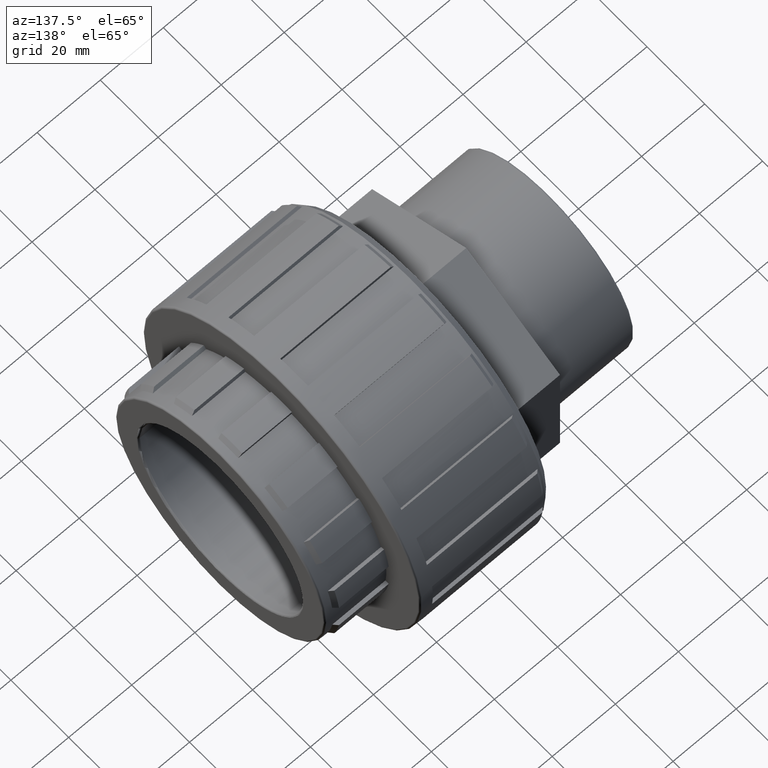
[diagram: clean part render]
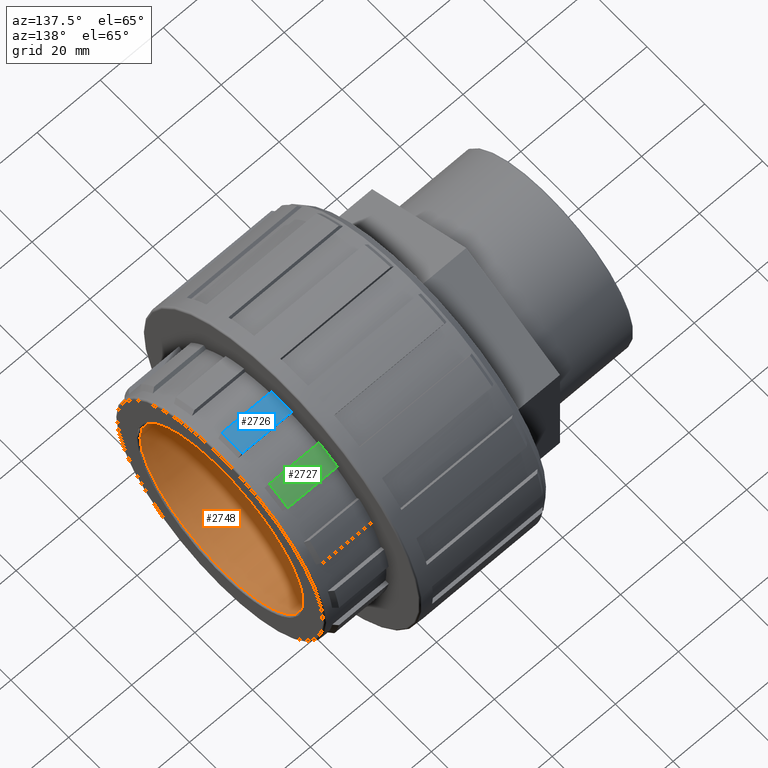
[diagram: same view with three faces highlighted in distinct colors, each labeled with its STEP entity id]
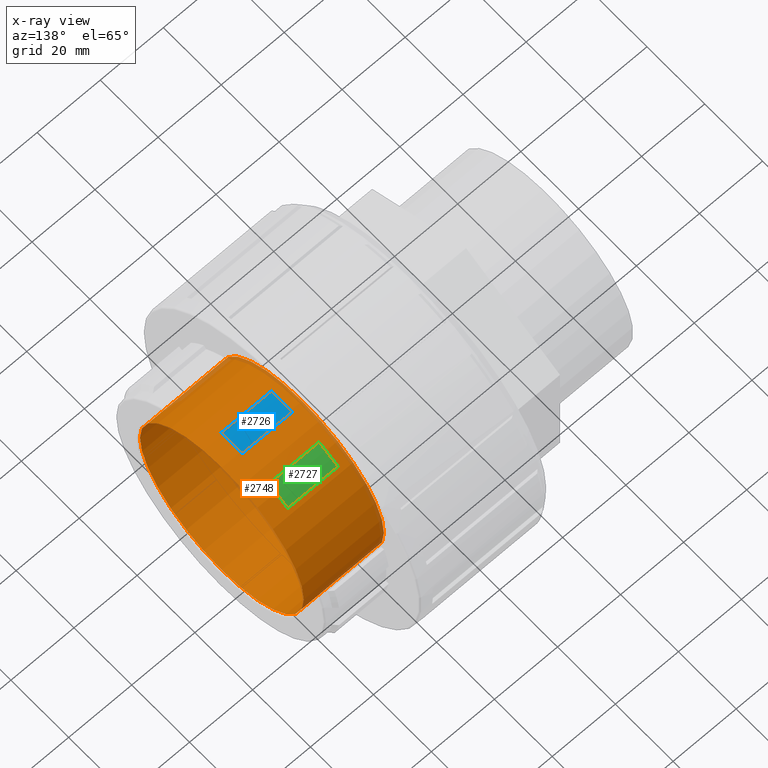
[diagram: x-ray of the same camera — body ghosted, the three highlighted faces saturated]
A machine part, auxiliary view with three faces highlighted in distinct colors.
The next image is the same camera in x-ray (body ghosted, the three faces saturated) — at least one of them is partly hidden behind the body in this view.
Their STEP definitions:

[orange] entity #2748 — the highlighted cylindrical surface (bore or boss wall) has radius 28.328 mm, axis along (-1, -0, 0).
#56=FACE_BOUND('',#516,.T.);
#88=CYLINDRICAL_SURFACE('',#3022,28.328);
#216=CIRCLE('',#3018,28.328);
#219=CIRCLE('',#3023,28.328);
#362=FACE_OUTER_BOUND('',#515,.T.);
#515=EDGE_LOOP('',(#2356));
#516=EDGE_LOOP('',(#2357));
#1321=VERTEX_POINT('',#4648);
#1324=VERTEX_POINT('',#4656);
#1715=EDGE_CURVE('',#1321,#1321,#216,.T.);
#1718=EDGE_CURVE('',#1324,#1324,#219,.T.);
#2356=ORIENTED_EDGE('',*,*,#1718,.T.);
#2357=ORIENTED_EDGE('',*,*,#1715,.F.);
#2748=ADVANCED_FACE('',(#362,#56),#88,.F.);
#3018=AXIS2_PLACEMENT_3D('',#4649,#3810,#3811);
#3022=AXIS2_PLACEMENT_3D('',#4655,#3818,#3819);
#3023=AXIS2_PLACEMENT_3D('',#4657,#3820,#3821);
#3810=DIRECTION('center_axis',(-1.,-1.83697019872103E-16,0.));
#3811=DIRECTION('ref_axis',(-1.83711184267524E-16,1.,6.12323399573677E-17));
#3818=DIRECTION('center_axis',(-1.,-1.83697019872103E-16,0.));
#3819=DIRECTION('ref_axis',(1.48988227547241E-16,-1.,0.));
#3820=DIRECTION('center_axis',(-1.,-1.83697019872103E-16,0.));
#3821=DIRECTION('ref_axis',(0.,0.,1.));
#4648=CARTESIAN_POINT('',(51.43344,-28.328,1.73458972631231E-15));
#4649=CARTESIAN_POINT('Origin',(51.43344,1.900041468312E-14,0.));
#4655=CARTESIAN_POINT('Origin',(39.,1.67164288083614E-14,0.));
#4656=CARTESIAN_POINT('',(26.,-28.328,0.));
#4657=CARTESIAN_POINT('Origin',(26.,1.4328367550024E-14,0.));

[blue] entity #2726 — the highlighted cylindrical surface (partial cylindrical patch) has radius 37.393 mm, axis along (-1, -0, 0).
#85=CYLINDRICAL_SURFACE('',#2962,37.39296);
#181=CIRCLE('',#2963,37.39296);
#182=CIRCLE('',#2964,37.39296);
#340=FACE_OUTER_BOUND('',#489,.T.);
#489=EDGE_LOOP('',(#2221,#2222,#2223,#2224));
#719=LINE('',#4362,#977);
#721=LINE('',#4368,#979);
#977=VECTOR('',#3504,15.76688);
#979=VECTOR('',#3508,15.76688);
#1229=VERTEX_POINT('',#4356);
#1231=VERTEX_POINT('',#4360);
#1232=VERTEX_POINT('',#4364);
#1234=VERTEX_POINT('',#4367);
#1570=EDGE_CURVE('',#1229,#1231,#719,.T.);
#1572=EDGE_CURVE('',#1234,#1232,#721,.T.);
#1675=EDGE_CURVE('',#1234,#1231,#181,.T.);
#1676=EDGE_CURVE('',#1229,#1232,#182,.T.);
#2221=ORIENTED_EDGE('',*,*,#1570,.T.);
#2222=ORIENTED_EDGE('',*,*,#1675,.F.);
#2223=ORIENTED_EDGE('',*,*,#1572,.T.);
#2224=ORIENTED_EDGE('',*,*,#1676,.F.);
#2726=ADVANCED_FACE('',(#340),#85,.T.);
#2962=AXIS2_PLACEMENT_3D('',#4582,#3693,#3694);
#2963=AXIS2_PLACEMENT_3D('',#4583,#3695,#3696);
#2964=AXIS2_PLACEMENT_3D('',#4584,#3697,#3698);
#3504=DIRECTION('',(-1.,-1.83697019872103E-16,0.));
#3508=DIRECTION('',(1.,1.83697019872103E-16,0.));
#3693=DIRECTION('center_axis',(-1.,-1.83697019872103E-16,0.));
#3694=DIRECTION('ref_axis',(1.48988227547241E-16,-1.,0.));
#3695=DIRECTION('center_axis',(-1.,-1.83697019872103E-16,0.));
#3696=DIRECTION('ref_axis',(0.,0.,1.));
#3697=DIRECTION('center_axis',(1.,1.83697019872103E-16,0.));
#3698=DIRECTION('ref_axis',(1.48988227547241E-16,-1.,0.));
#4356=CARTESIAN_POINT('',(48.26688,3.57222353381232,37.2219381089443));
#4360=CARTESIAN_POINT('',(32.5,3.57222353381232,37.2219381089443));
#4362=CARTESIAN_POINT('',(40.95,3.57222353381232,37.2219381089443));
#4364=CARTESIAN_POINT('',(48.26688,-3.5722235338123,37.2219381089443));
#4367=CARTESIAN_POINT('',(32.5,-3.5722235338123,37.2219381089443));
#4368=CARTESIAN_POINT('',(40.95,-3.5722235338123,37.2219381089443));
#4582=CARTESIAN_POINT('Origin',(40.95,1.7074637997112E-14,0.));
#4583=CARTESIAN_POINT('Origin',(32.5,1.55223981791927E-14,0.));
#4584=CARTESIAN_POINT('Origin',(48.26688,1.84187270478738E-14,0.));

[green] entity #2727 — the highlighted cylindrical surface (partial cylindrical patch) has radius 37.393 mm, axis along (-1, -0, 0).
#86=CYLINDRICAL_SURFACE('',#2965,37.39296);
#183=CIRCLE('',#2966,37.39296);
#184=CIRCLE('',#2967,37.39296);
#341=FACE_OUTER_BOUND('',#490,.T.);
#490=EDGE_LOOP('',(#2225,#2226,#2227,#2228));
#711=LINE('',#4344,#969);
#713=LINE('',#4350,#971);
#969=VECTOR('',#3492,15.76688);
#971=VECTOR('',#3496,15.76688);
#1221=VERTEX_POINT('',#4338);
#1223=VERTEX_POINT('',#4342);
#1224=VERTEX_POINT('',#4346);
#1226=VERTEX_POINT('',#4349);
#1562=EDGE_CURVE('',#1221,#1223,#711,.T.);
#1564=EDGE_CURVE('',#1226,#1224,#713,.T.);
#1677=EDGE_CURVE('',#1226,#1223,#183,.T.);
#1678=EDGE_CURVE('',#1221,#1224,#184,.T.);
#2225=ORIENTED_EDGE('',*,*,#1562,.T.);
#2226=ORIENTED_EDGE('',*,*,#1677,.F.);
#2227=ORIENTED_EDGE('',*,*,#1564,.T.);
#2228=ORIENTED_EDGE('',*,*,#1678,.F.);
#2727=ADVANCED_FACE('',(#341),#86,.T.);
#2965=AXIS2_PLACEMENT_3D('',#4585,#3699,#3700);
#2966=AXIS2_PLACEMENT_3D('',#4586,#3701,#3702);
#2967=AXIS2_PLACEMENT_3D('',#4587,#3703,#3704);
#3492=DIRECTION('',(-1.,-1.83697019872103E-16,0.));
#3496=DIRECTION('',(1.,1.83697019872103E-16,0.));
#3699=DIRECTION('center_axis',(-1.,-1.83697019872103E-16,0.));
#3700=DIRECTION('ref_axis',(1.48988227547241E-16,-1.,0.));
#3701=DIRECTION('center_axis',(-1.,-1.83697019872103E-16,0.));
#3702=DIRECTION('ref_axis',(0.,0.,1.));
#3703=DIRECTION('center_axis',(1.,1.83697019872103E-16,0.));
#3704=DIRECTION('ref_axis',(1.48988227547241E-16,-1.,0.));
#4338=CARTESIAN_POINT('',(48.26688,19.3684558770643,31.9858777353352));
#4342=CARTESIAN_POINT('',(32.5,19.3684558770643,31.9858777353352));
#4344=CARTESIAN_POINT('',(40.95,19.3684558770643,31.9858777353352));
#4346=CARTESIAN_POINT('',(48.26688,12.9315314907578,35.0857371429637));
#4349=CARTESIAN_POINT('',(32.5,12.9315314907578,35.0857371429637));
#4350=CARTESIAN_POINT('',(40.95,12.9315314907578,35.0857371429637));
#4585=CARTESIAN_POINT('Origin',(40.95,1.7074637997112E-14,0.));
#4586=CARTESIAN_POINT('Origin',(32.5,1.55223981791927E-14,0.));
#4587=CARTESIAN_POINT('Origin',(48.26688,1.84187270478738E-14,0.));